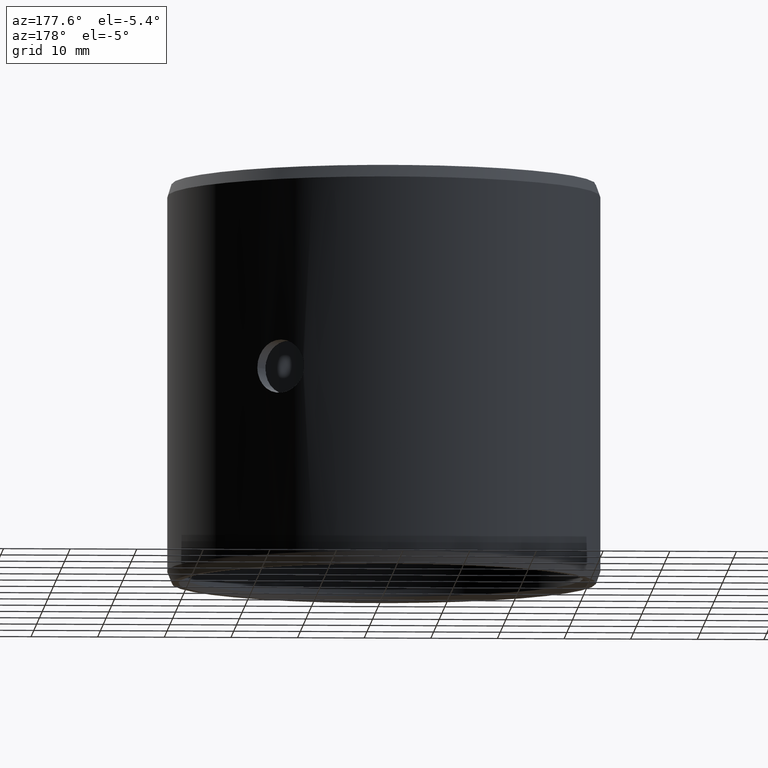
[diagram: clean part render]
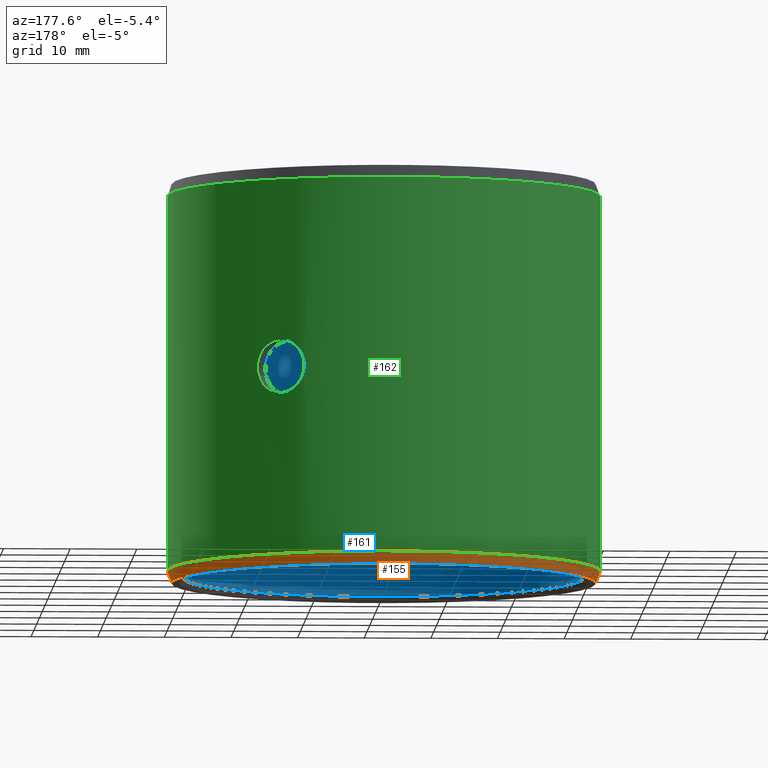
[diagram: same view with three faces highlighted in distinct colors, each labeled with its STEP entity id]
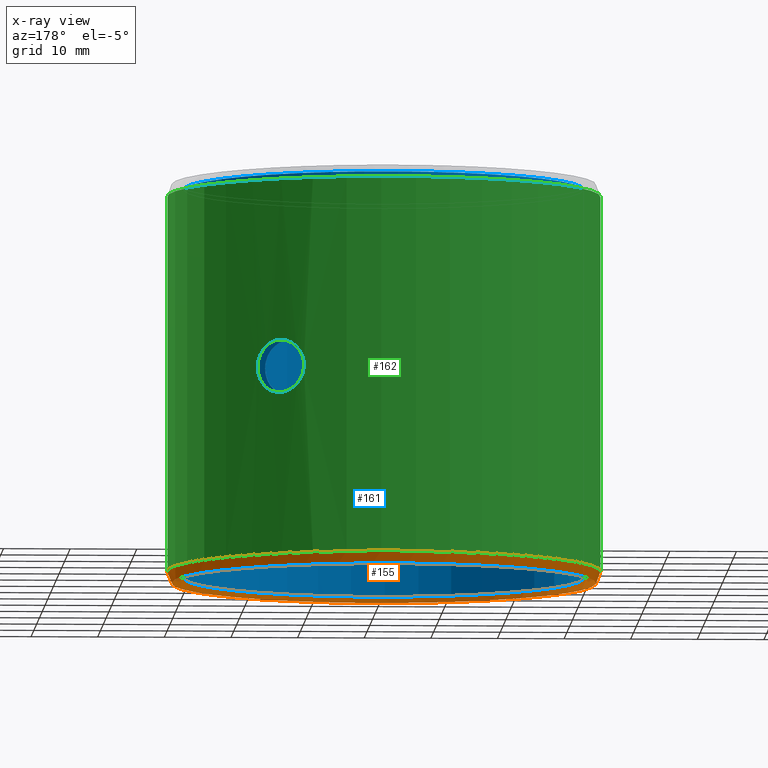
[diagram: x-ray of the same camera — body ghosted, the three highlighted faces saturated]
A machine part, auxiliary view with three faces highlighted in distinct colors.
The next image is the same camera in x-ray (body ghosted, the three faces saturated) — at least one of them is partly hidden behind the body in this view.
Their STEP definitions:

[orange] entity #155 — the highlighted conical surface has half-angle 20 deg.
#155=ADVANCED_FACE('',(#170),#171,.T.);
#170=FACE_OUTER_BOUND('',#196,.T.);
#171=CONICAL_SURFACE('',#197,0.0318448535783208,0.34906585039887);
#196=EDGE_LOOP('',(#231,#232,#233,#234));
#197=AXIS2_PLACEMENT_3D('',#235,#236,#237);
#231=ORIENTED_EDGE('',*,*,#309,.T.);
#232=ORIENTED_EDGE('',*,*,#310,.F.);
#233=ORIENTED_EDGE('',*,*,#306,.F.);
#234=ORIENTED_EDGE('',*,*,#311,.T.);
#235=CARTESIAN_POINT('',(-6.93889390390723E-018,-6.93889390390723E-018,-6.01853107621011E-036));
#236=DIRECTION('',(-6.12323399573677E-017,0.0,1.0));
#237=DIRECTION('',(1.0,0.0,6.12323399573677E-017));
#306=EDGE_CURVE('',#336,#337,#338,.T.);
#309=EDGE_CURVE('',#341,#342,#343,.T.);
#310=EDGE_CURVE('',#337,#342,#344,.T.);
#311=EDGE_CURVE('',#336,#341,#345,.T.);
#336=VERTEX_POINT('',#382);
#337=VERTEX_POINT('',#383);
#338=CIRCLE('',#384,0.0318448535783208);
#341=VERTEX_POINT('',#389);
#342=VERTEX_POINT('',#390);
#343=CIRCLE('',#391,0.0325);
#344=LINE('',#392,#393);
#345=LINE('',#394,#395);
#382=CARTESIAN_POINT('',(0.000555769327584632,0.0318400034528768,3.40310564045403E-020));
#383=CARTESIAN_POINT('',(-6.93889390390723E-018,0.0318448535783208,0.0));
#384=AXIS2_PLACEMENT_3D('',#570,#571,#572);
#389=CARTESIAN_POINT('',(0.000567203209211709,0.0324950500925827,0.0018));
#390=CARTESIAN_POINT('',(-6.93889390390723E-018,0.0325,0.0018));
#391=AXIS2_PLACEMENT_3D('',#575,#576,#577);
#392=CARTESIAN_POINT('',(-6.93889390390723E-018,0.0318448535783208,0.0));
#393=VECTOR('',#578,1.0);
#394=CARTESIAN_POINT('',(0.000555769327584632,0.0318400034528768,3.40310564045403E-020));
#395=VECTOR('',#579,1.0);
#570=CARTESIAN_POINT('',(-6.93889390390723E-018,-6.93889390390723E-018,-6.01853107621011E-036));
#571=DIRECTION('',(6.12323399573677E-017,0.0,-1.0));
#572=DIRECTION('',(-1.0,0.0,-6.12323399573677E-017));
#575=CARTESIAN_POINT('',(-6.93889390390723E-018,-6.93889390390723E-018,0.0018));
#576=DIRECTION('',(6.12323399573677E-017,0.0,-1.0));
#577=DIRECTION('',(-1.0,0.0,-6.12323399573677E-017));
#578=DIRECTION('',(0.0,0.342020143325672,0.939692620785907));
#579=DIRECTION('',(0.00596907455105761,0.341968052001232,0.939692620785907));

[blue] entity #161 — the highlighted cylindrical surface (partial cylindrical patch) has radius 30 mm, axis along (-0, 0, -1).
#161=ADVANCED_FACE('',(#182,#183),#184,.F.);
#182=FACE_OUTER_BOUND('',#208,.T.);
#183=FACE_BOUND('',#209,.T.);
#184=CYLINDRICAL_SURFACE('',#210,0.03);
#208=EDGE_LOOP('',(#281,#282,#283,#284));
#209=EDGE_LOOP('',(#285));
#210=AXIS2_PLACEMENT_3D('',#286,#287,#288);
#281=ORIENTED_EDGE('',*,*,#304,.T.);
#282=ORIENTED_EDGE('',*,*,#322,.F.);
#283=ORIENTED_EDGE('',*,*,#319,.F.);
#284=ORIENTED_EDGE('',*,*,#325,.T.);
#285=ORIENTED_EDGE('',*,*,#326,.T.);
#286=CARTESIAN_POINT('',(-6.93889390390723E-018,-6.93889390390723E-018,0.0));
#287=DIRECTION('',(6.12323399573677E-017,0.0,-1.0));
#288=DIRECTION('',(-1.0,0.0,-6.12323399573677E-017));
#304=EDGE_CURVE('',#333,#331,#334,.T.);
#319=EDGE_CURVE('',#359,#360,#361,.T.);
#322=EDGE_CURVE('',#360,#331,#364,.T.);
#325=EDGE_CURVE('',#359,#333,#367,.T.);
#326=EDGE_CURVE('',#368,#368,#369,.T.);
#331=VERTEX_POINT('',#375);
#333=VERTEX_POINT('',#378);
#334=CIRCLE('',#379,0.03);
#359=VERTEX_POINT('',#413);
#360=VERTEX_POINT('',#414);
#361=CIRCLE('',#415,0.03);
#364=LINE('',#420,#421);
#367=LINE('',#426,#427);
#368=VERTEX_POINT('',#428);
#369=B_SPLINE_CURVE_WITH_KNOTS('',3,(#429,#430,#431,#432,#433,#434,#435,#436,#437,#438,#439,#440,#441,#442,#443,#444,#445,#446,#447,#448,#449,#450,#451,#452,#453,#454,#455,#456,#457,#458,#459,#460,#461,#462,#463,#464,#465,#466,#467,#468,#469,#470,#471,#472,#473,#474,#475,#476,#477,#478,#479,#480,#481,#482,#483,#484,#485,#486,#487,#488,#489,#490,#491,#492,#493,#494),.UNSPECIFIED.,.T.,.F.,(2,2,2,2,2,2,2,2,2,2,2,2,2,2,2,2,2,2,2,2,2,2,2,2,2,2,2,2,2,2,2,2,2,2,2),(-0.000782390098521983,0.0,0.000782390098521983,0.00156478019704397,0.00234717029556595,0.00312956039408793,0.00391195049260992,0.0046943405911319,0.00547673068965388,0.00625912078817587,0.00704151088669785,0.00782390098521983,0.00860629108374182,0.0093886811822638,0.0101710712807858,0.0109534613793078,0.0117358514778298,0.0125182415763517,0.0133006316748737,0.0140830217733957,0.0148654118719177,0.0156478019704397,0.0164301920689616,0.0172125821674836,0.0179949722660056,0.0187773623645276,0.0195597524630496,0.0203421425615716,0.0211245326600936,0.0219069227586155,0.0226893128571375,0.0234717029556595,0.0242540930541815,0.0250364831527035,0.0258188732512254),.UNSPECIFIED.);
#375=CARTESIAN_POINT('',(-6.93889390390723E-018,0.03,0.0008));
#378=CARTESIAN_POINT('',(0.0005235721931185,0.0299954308546918,0.0008));
#379=AXIS2_PLACEMENT_3D('',#566,#567,#568);
#413=CARTESIAN_POINT('',(0.000523572193118497,0.0299954308546918,0.0592));
#414=CARTESIAN_POINT('',(-1.04083408558608E-017,0.03,0.0592));
#415=AXIS2_PLACEMENT_3D('',#593,#594,#595);
#420=CARTESIAN_POINT('',(-1.04083408558608E-017,0.03,0.0592));
#421=VECTOR('',#598,1.0);
#426=CARTESIAN_POINT('',(0.000523572193118497,0.0299954308546918,0.0592));
#427=VECTOR('',#601,1.0);
#428=CARTESIAN_POINT('',(0.0234252637408073,-0.0187418520609256,0.03));
#429=CARTESIAN_POINT('',(0.0234252637408073,-0.0187418520609256,0.0302645748852859));
#430=CARTESIAN_POINT('',(0.0234252637408073,-0.0187418520609255,0.0297354251147141));
#431=CARTESIAN_POINT('',(0.023441675296859,-0.0187213913529828,0.0294753310265025));
#432=CARTESIAN_POINT('',(0.0235056042264161,-0.0186410623320132,0.0289637194895901));
#433=CARTESIAN_POINT('',(0.0235539053651188,-0.0185801987286633,0.0287095284970621));
#434=CARTESIAN_POINT('',(0.0236787302159274,-0.0184208571490828,0.0282252724695114));
#435=CARTESIAN_POINT('',(0.0237546670196879,-0.0183231307256084,0.0279956426811471));
#436=CARTESIAN_POINT('',(0.0239319190884214,-0.0180910080854891,0.0275610598464124));
#437=CARTESIAN_POINT('',(0.0240340299107614,-0.0179554915170169,0.0273555260168131));
#438=CARTESIAN_POINT('',(0.0242537858112139,-0.0176575236993412,0.0269870140210863));
#439=CARTESIAN_POINT('',(0.0243722667898825,-0.0174940174500302,0.026821542989767));
#440=CARTESIAN_POINT('',(0.0246252613523898,-0.0171360595921486,0.0265291171512788));
#441=CARTESIAN_POINT('',(0.0247576545723658,-0.0169445145799369,0.0264050335044158));
#442=CARTESIAN_POINT('',(0.0250265766966305,-0.0165447421594279,0.0262054447097489));
#443=CARTESIAN_POINT('',(0.0251650934413509,-0.016333548290107,0.0261284944660535));
#444=CARTESIAN_POINT('',(0.0254426234726827,-0.015897787219751,0.0260256259986326));
#445=CARTESIAN_POINT('',(0.0255793313436665,-0.0156769265349765,0.026000146514808));
#446=CARTESIAN_POINT('',(0.0258484050662319,-0.0152291881958338,0.0259998547332059));
#447=CARTESIAN_POINT('',(0.025982063731016,-0.0149999419828119,0.0260258865927404));
#448=CARTESIAN_POINT('',(0.02623494019485,-0.0145531373999884,0.0261280479221072));
#449=CARTESIAN_POINT('',(0.0263550418165588,-0.0143342472120456,0.0262036335772393));
#450=CARTESIAN_POINT('',(0.0265834459954312,-0.0139060875625242,0.0264041618262039));
#451=CARTESIAN_POINT('',(0.0266910667782492,-0.0136979600093645,0.0265292786475479));
#452=CARTESIAN_POINT('',(0.0268865605771918,-0.0133101470505813,0.0268186236854051));
#453=CARTESIAN_POINT('',(0.0269758137532817,-0.0131278558330425,0.0269840855035263));
#454=CARTESIAN_POINT('',(0.0271377303123182,-0.0127897896746107,0.0273569840813073));
#455=CARTESIAN_POINT('',(0.0272079623113936,-0.012639146715068,0.0275586807765583));
#456=CARTESIAN_POINT('',(0.0273294847405076,-0.0123741871103355,0.0279915132474239));
#457=CARTESIAN_POINT('',(0.0273811763824563,-0.0122589320672613,0.0282254531047087));
#458=CARTESIAN_POINT('',(0.0274632356564205,-0.0120739770911173,0.0287095813478241));
#459=CARTESIAN_POINT('',(0.0274937944424213,-0.0120039137899558,0.0289588958276849));
#460=CARTESIAN_POINT('',(0.02753505230175,-0.0119089703105978,0.0294719929493518));
#461=CARTESIAN_POINT('',(0.0275455287149137,-0.0118846054972731,0.0297373046594878));
#462=CARTESIAN_POINT('',(0.0275456077362073,-0.0118844223441,0.0302596676856141));
#463=CARTESIAN_POINT('',(0.0275355499438901,-0.0119078191998081,0.0305194555464069));
#464=CARTESIAN_POINT('',(0.0274943758310708,-0.0120025816584437,0.0310361756177667));
#465=CARTESIAN_POINT('',(0.0274634589264332,-0.0120734626254401,0.0312884779553218));
#466=CARTESIAN_POINT('',(0.0273820499823965,-0.0122569741263217,0.0317700080112383));
#467=CARTESIAN_POINT('',(0.0273308965840549,-0.0123710810072738,0.0320029222406208));
#468=CARTESIAN_POINT('',(0.0272085100062893,-0.0126379799261784,0.0324398958450481));
#469=CARTESIAN_POINT('',(0.0271382894502184,-0.0127885681833402,0.0326411904644415));
#470=CARTESIAN_POINT('',(0.0269784929170624,-0.0131223149782266,0.0330102712667482));
#471=CARTESIAN_POINT('',(0.026887832262026,-0.0133075854288313,0.0331792444971148));
#472=CARTESIAN_POINT('',(0.0266919564192724,-0.0136962336504657,0.0334696515119467));
#473=CARTESIAN_POINT('',(0.0265863659529788,-0.0139005011718581,0.0335927310094082));
#474=CARTESIAN_POINT('',(0.0263582188703986,-0.0143284013551653,0.0337941063671537));
#475=CARTESIAN_POINT('',(0.0262359938421114,-0.0145512216770861,0.0338713056463344));
#476=CARTESIAN_POINT('',(0.0259840669337608,-0.0149964559400162,0.0339735222185292));
#477=CARTESIAN_POINT('',(0.0258530309186644,-0.0152213907843255,0.0339997640089097));
#478=CARTESIAN_POINT('',(0.0255806588823717,-0.0156748153492889,0.0340002328484764));
#479=CARTESIAN_POINT('',(0.0254437336368332,-0.0158959725265158,0.0339744923013346));
#480=CARTESIAN_POINT('',(0.0251687825099651,-0.0163278262763888,0.0338731610302094));
#481=CARTESIAN_POINT('',(0.0250292322602547,-0.0165407473109433,0.0337962932573902));
#482=CARTESIAN_POINT('',(0.0247586102067322,-0.0169431404932306,0.0335959056015705));
#483=CARTESIAN_POINT('',(0.0246277080768371,-0.0171325293198646,0.0334732378448627));
#484=CARTESIAN_POINT('',(0.0243760153778073,-0.0174887804124481,0.0331832514087161));
#485=CARTESIAN_POINT('',(0.0242549536322003,-0.0176559204455364,0.0330147145059539));
#486=CARTESIAN_POINT('',(0.024035110417578,-0.0179540460535816,0.0326465133720488));
#487=CARTESIAN_POINT('',(0.0239348720465769,-0.0180871120358375,0.0324454599075632));
#488=CARTESIAN_POINT('',(0.0237560057642673,-0.0183214058360991,0.0320083427737609));
#489=CARTESIAN_POINT('',(0.023679296669112,-0.0184201266228546,0.0317763401144907));
#490=CARTESIAN_POINT('',(0.0235550114632606,-0.0185787941081083,0.0312953397276555));
#491=CARTESIAN_POINT('',(0.0235066358798499,-0.0186397636832833,0.0310431128484346));
#492=CARTESIAN_POINT('',(0.0234416785906791,-0.0187213895159465,0.0305260965645788));
#493=CARTESIAN_POINT('',(0.0234252637408073,-0.0187418520609256,0.0302645748852859));
#494=CARTESIAN_POINT('',(0.0234252637408073,-0.0187418520609255,0.0297354251147141));
#566=CARTESIAN_POINT('',(-6.93889390390723E-018,-6.93889390390723E-018,0.0008));
#567=DIRECTION('',(6.12323399573677E-017,0.0,-1.0));
#568=DIRECTION('',(-1.0,0.0,-6.12323399573677E-017));
#593=CARTESIAN_POINT('',(-1.04083408558608E-017,-6.93889390390723E-018,0.0592));
#594=DIRECTION('',(6.12323399573677E-017,0.0,-1.0));
#595=DIRECTION('',(-1.0,0.0,-6.12323399573677E-017));
#598=DIRECTION('',(5.94083382183838E-017,0.0,-1.0));
#601=DIRECTION('',(5.94086160226834E-017,3.18332196910583E-020,-1.0));

[green] entity #162 — the highlighted cylindrical surface (partial cylindrical patch) has radius 32.5 mm, axis along (-0, 0, -1).
#162=ADVANCED_FACE('',(#185,#186),#187,.T.);
#185=FACE_OUTER_BOUND('',#211,.T.);
#186=FACE_BOUND('',#212,.T.);
#187=CYLINDRICAL_SURFACE('',#213,0.0325);
#211=EDGE_LOOP('',(#289,#290,#291,#292));
#212=EDGE_LOOP('',(#293));
#213=AXIS2_PLACEMENT_3D('',#294,#295,#296);
#289=ORIENTED_EDGE('',*,*,#314,.T.);
#290=ORIENTED_EDGE('',*,*,#323,.F.);
#291=ORIENTED_EDGE('',*,*,#309,.F.);
#292=ORIENTED_EDGE('',*,*,#324,.T.);
#293=ORIENTED_EDGE('',*,*,#327,.T.);
#294=CARTESIAN_POINT('',(-6.93889390390723E-018,-6.93889390390723E-018,0.0));
#295=DIRECTION('',(6.12323399573677E-017,0.0,-1.0));
#296=DIRECTION('',(-1.0,0.0,-6.12323399573677E-017));
#309=EDGE_CURVE('',#341,#342,#343,.T.);
#314=EDGE_CURVE('',#351,#349,#352,.T.);
#323=EDGE_CURVE('',#342,#349,#365,.T.);
#324=EDGE_CURVE('',#341,#351,#366,.T.);
#327=EDGE_CURVE('',#370,#370,#371,.T.);
#341=VERTEX_POINT('',#389);
#342=VERTEX_POINT('',#390);
#343=CIRCLE('',#391,0.0325);
#349=VERTEX_POINT('',#399);
#351=VERTEX_POINT('',#402);
#352=CIRCLE('',#403,0.0325);
#365=LINE('',#422,#423);
#366=LINE('',#424,#425);
#370=VERTEX_POINT('',#495);
#371=B_SPLINE_CURVE_WITH_KNOTS('',3,(#496,#497,#498,#499,#500,#501,#502,#503,#504,#505,#506,#507,#508,#509,#510,#511,#512,#513,#514,#515,#516,#517,#518,#519,#520,#521,#522,#523,#524,#525,#526,#527,#528,#529,#530,#531,#532,#533,#534,#535,#536,#537,#538,#539,#540,#541,#542,#543,#544,#545,#546,#547,#548,#549,#550,#551,#552,#553,#554,#555,#556,#557,#558,#559,#560,#561),.UNSPECIFIED.,.T.,.F.,(2,2,2,2,2,2,2,2,2,2,2,2,2,2,2,2,2,2,2,2,2,2,2,2,2,2,2,2,2,2,2,2,2,2,2),(-0.000782261485065099,0.0,0.000782261485065106,0.00156452297013021,0.00234678445519532,0.00312904594026042,0.00391130742532553,0.00469356891039063,0.00547583039545574,0.00625809188052084,0.00704035336558595,0.00782261485065106,0.00860487633571616,0.00938713782078127,0.0101693993058464,0.0109516607909115,0.0117339222759766,0.0125161837610417,0.0132984452461068,0.0140807067311719,0.014862968216237,0.0156452297013021,0.0164274911863672,0.0172097526714323,0.0179920141564974,0.0187742756415625,0.0195565371266276,0.0203387986116927,0.0211210600967578,0.0219033215818229,0.022685583066888,0.0234678445519531,0.0242501060370182,0.0250323675220833,0.0258146290071484),.UNSPECIFIED.);
#389=CARTESIAN_POINT('',(0.000567203209211709,0.0324950500925827,0.0018));
#390=CARTESIAN_POINT('',(-6.93889390390723E-018,0.0325,0.0018));
#391=AXIS2_PLACEMENT_3D('',#575,#576,#577);
#399=CARTESIAN_POINT('',(-1.04083408558608E-017,0.0325,0.0582));
#402=CARTESIAN_POINT('',(0.000567203209211706,0.0324950500925827,0.0582));
#403=AXIS2_PLACEMENT_3D('',#584,#585,#586);
#422=CARTESIAN_POINT('',(-6.93889390390723E-018,0.0325,0.0018));
#423=VECTOR('',#599,1.0);
#424=CARTESIAN_POINT('',(0.000567203209211709,0.0324950500925827,0.0018));
#425=VECTOR('',#600,1.0);
#495=CARTESIAN_POINT('',(0.0255859848011896,-0.0200401442548025,0.03));
#496=CARTESIAN_POINT('',(0.0255859848011896,-0.0200401442548025,0.0297354721054898));
#497=CARTESIAN_POINT('',(0.0255859848011896,-0.0200401442548025,0.0302645278945102));
#498=CARTESIAN_POINT('',(0.0256021542041996,-0.0200195486177481,0.0305245847293601));
#499=CARTESIAN_POINT('',(0.0256651675871214,-0.019938701047936,0.0310361376330123));
#500=CARTESIAN_POINT('',(0.0257127825915212,-0.0198774502742382,0.0312903036083483));
#501=CARTESIAN_POINT('',(0.025835932839771,-0.0197171192698755,0.0317745828464123));
#502=CARTESIAN_POINT('',(0.0259108831437867,-0.0196188027321992,0.0320042306054443));
#503=CARTESIAN_POINT('',(0.0260859783332775,-0.0193853816142911,0.0324388476480562));
#504=CARTESIAN_POINT('',(0.0261869279197239,-0.0192491309717941,0.0326444322410981));
#505=CARTESIAN_POINT('',(0.0264044057386654,-0.018949712257183,0.0330130160991055));
#506=CARTESIAN_POINT('',(0.0265217527494969,-0.0187854898891587,0.0331785029810731));
#507=CARTESIAN_POINT('',(0.0267726025073364,-0.0184262246340724,0.033470926740866));
#508=CARTESIAN_POINT('',(0.0269040528616048,-0.0182340329112422,0.0335950379196381));
#509=CARTESIAN_POINT('',(0.0271713574067989,-0.0178332653560778,0.0337946114793971));
#510=CARTESIAN_POINT('',(0.0273091883428305,-0.0176217180733891,0.0338715352239556));
#511=CARTESIAN_POINT('',(0.0275858185201429,-0.0171854395456135,0.0339743855543017));
#512=CARTESIAN_POINT('',(0.027722284285725,-0.0169644671684853,0.0339998545854076));
#513=CARTESIAN_POINT('',(0.0279913054310868,-0.0165168100005051,0.0340001441847218));
#514=CARTESIAN_POINT('',(0.0281251673706253,-0.0162877512426127,0.0339741238251621));
#515=CARTESIAN_POINT('',(0.0283789107197148,-0.0158415058163476,0.0338719832281324));
#516=CARTESIAN_POINT('',(0.0284996489304602,-0.015623022980754,0.0337964122020098));
#517=CARTESIAN_POINT('',(0.0287296640593396,-0.0151958954739147,0.0335959327653227));
#518=CARTESIAN_POINT('',(0.0288383075797661,-0.0149883002619899,0.033470796897954));
#519=CARTESIAN_POINT('',(0.0290359613296663,-0.0146017149154091,0.0331814298471914));
#520=CARTESIAN_POINT('',(0.0291263343471406,-0.0144201857836602,0.0330160492642054));
#521=CARTESIAN_POINT('',(0.0292906710707517,-0.0140833837823772,0.032643004152575));
#522=CARTESIAN_POINT('',(0.0293620752134059,-0.0139334039158355,0.0324412495575575));
#523=CARTESIAN_POINT('',(0.0294857552052583,-0.0136697273379941,0.0320083743174263));
#524=CARTESIAN_POINT('',(0.0295384412409487,-0.0135550987870036,0.0317744687372154));
#525=CARTESIAN_POINT('',(0.0296221732598352,-0.0133711280539342,0.031290252110183));
#526=CARTESIAN_POINT('',(0.029653386439366,-0.0133014789788357,0.031040935746993));
#527=CARTESIAN_POINT('',(0.0296955354261855,-0.0132071134658163,0.0305279411898444));
#528=CARTESIAN_POINT('',(0.0297062492771909,-0.0131828962633834,0.0302626582346066));
#529=CARTESIAN_POINT('',(0.0297063292940264,-0.0131827159525113,0.0297403402189154));
#530=CARTESIAN_POINT('',(0.0296960429608761,-0.013205971815659,0.0294806066624919));
#531=CARTESIAN_POINT('',(0.0296539865239828,-0.0133001406896929,0.0289640585747968));
#532=CARTESIAN_POINT('',(0.0296223951832267,-0.0133706302856379,0.028711655291805));
#533=CARTESIAN_POINT('',(0.0295393434183027,-0.0135531266149935,0.0282301328402803));
#534=CARTESIAN_POINT('',(0.0294872275255981,-0.013666562870251,0.0279973205031628));
#535=CARTESIAN_POINT('',(0.0293626306597871,-0.0139322449221166,0.0275601614663465));
#536=CARTESIAN_POINT('',(0.0292912371201917,-0.014082173626841,0.0273588247191729));
#537=CARTESIAN_POINT('',(0.0291291173482499,-0.0144145311612857,0.026989735337667));
#538=CARTESIAN_POINT('',(0.0290372757312297,-0.0145991083034058,0.0268207444240461));
#539=CARTESIAN_POINT('',(0.0288391977221823,-0.0149865946728037,0.0265302590709949));
#540=CARTESIAN_POINT('',(0.0287326235284087,-0.0151902957007496,0.0264071916961045));
#541=CARTESIAN_POINT('',(0.0285028856991856,-0.0156171138537387,0.0262058784266378));
#542=CARTESIAN_POINT('',(0.0283799622541836,-0.0158396072189694,0.0261286583441395));
#543=CARTESIAN_POINT('',(0.0281271595972714,-0.016284296343095,0.0260264624352858));
#544=CARTESIAN_POINT('',(0.0279960212555081,-0.0165088692419167,0.0260002420984294));
#545=CARTESIAN_POINT('',(0.0277235982813076,-0.0169623721254498,0.025999761206665));
#546=CARTESIAN_POINT('',(0.0275869031972688,-0.0171836627189609,0.0260255047540264));
#547=CARTESIAN_POINT('',(0.0273128803257483,-0.0176159603986226,0.0261268035923337));
#548=CARTESIAN_POINT('',(0.0271740498710487,-0.0178291842902217,0.0262036151196363));
#549=CARTESIAN_POINT('',(0.026904989878231,-0.0182326717323935,0.0264040288305014));
#550=CARTESIAN_POINT('',(0.0267750493741285,-0.0184226557927811,0.026526702746203));
#551=CARTESIAN_POINT('',(0.0265255268751932,-0.0187801474818413,0.026816627389124));
#552=CARTESIAN_POINT('',(0.0264055856724858,-0.0189480691214054,0.0269852175241674));
#553=CARTESIAN_POINT('',(0.0261879949989369,-0.0192476802776907,0.0273535282711474));
#554=CARTESIAN_POINT('',(0.0260889179092389,-0.0193814352153303,0.0275545954424497));
#555=CARTESIAN_POINT('',(0.0259122817260178,-0.0196169652197411,0.0279915761987354));
#556=CARTESIAN_POINT('',(0.0258364908114563,-0.019716385908543,0.0282238088618105));
#557=CARTESIAN_POINT('',(0.0257138741744195,-0.019876035965131,0.0287048257695671));
#558=CARTESIAN_POINT('',(0.0256662115326537,-0.0199373594035682,0.0289568500514686));
#559=CARTESIAN_POINT('',(0.0256021573499737,-0.0200195467844095,0.0294739509074179));
#560=CARTESIAN_POINT('',(0.0255859848011896,-0.0200401442548025,0.0297354721054898));
#561=CARTESIAN_POINT('',(0.0255859848011896,-0.0200401442548025,0.0302645278945102));
#575=CARTESIAN_POINT('',(-6.93889390390723E-018,-6.93889390390723E-018,0.0018));
#576=DIRECTION('',(6.12323399573677E-017,0.0,-1.0));
#577=DIRECTION('',(-1.0,0.0,-6.12323399573677E-017));
#584=CARTESIAN_POINT('',(-1.04083408558608E-017,-6.93889390390723E-018,0.0582));
#585=DIRECTION('',(6.12323399573677E-017,0.0,-1.0));
#586=DIRECTION('',(-1.0,0.0,-6.12323399573677E-017));
#599=DIRECTION('',(-6.15150168786102E-017,-4.92120135028881E-016,1.0));
#600=DIRECTION('',(-7.01036544380408E-017,-4.92040249356159E-016,1.0));